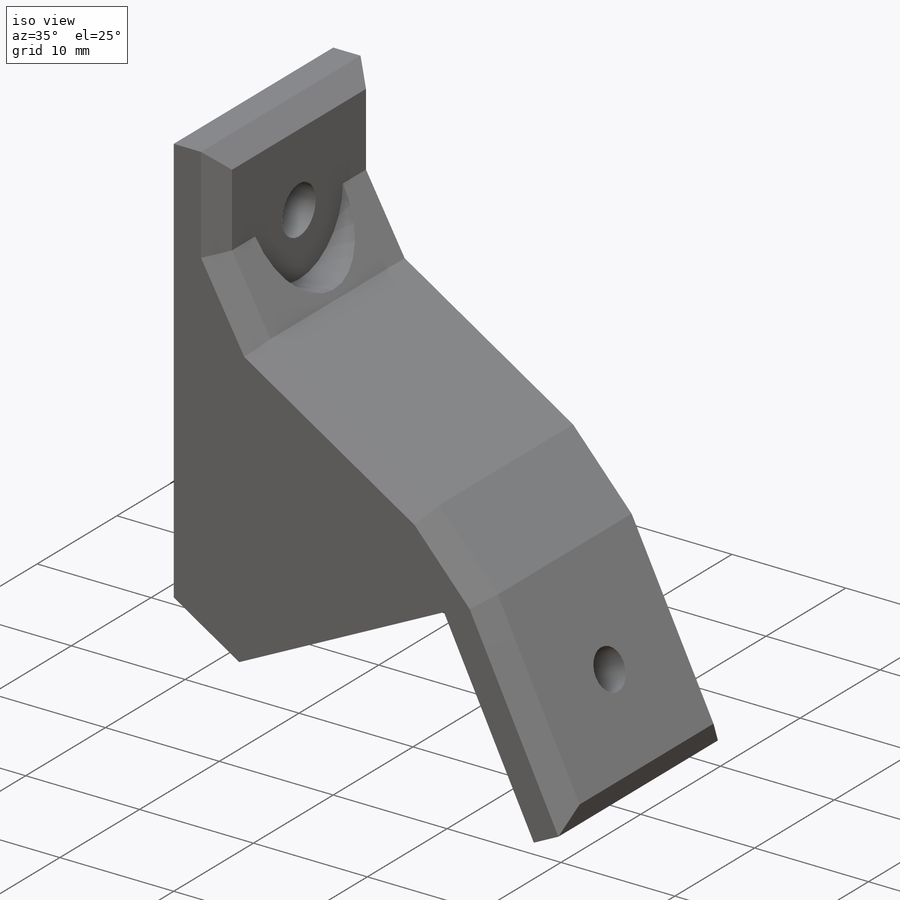
[diagram: iso view]
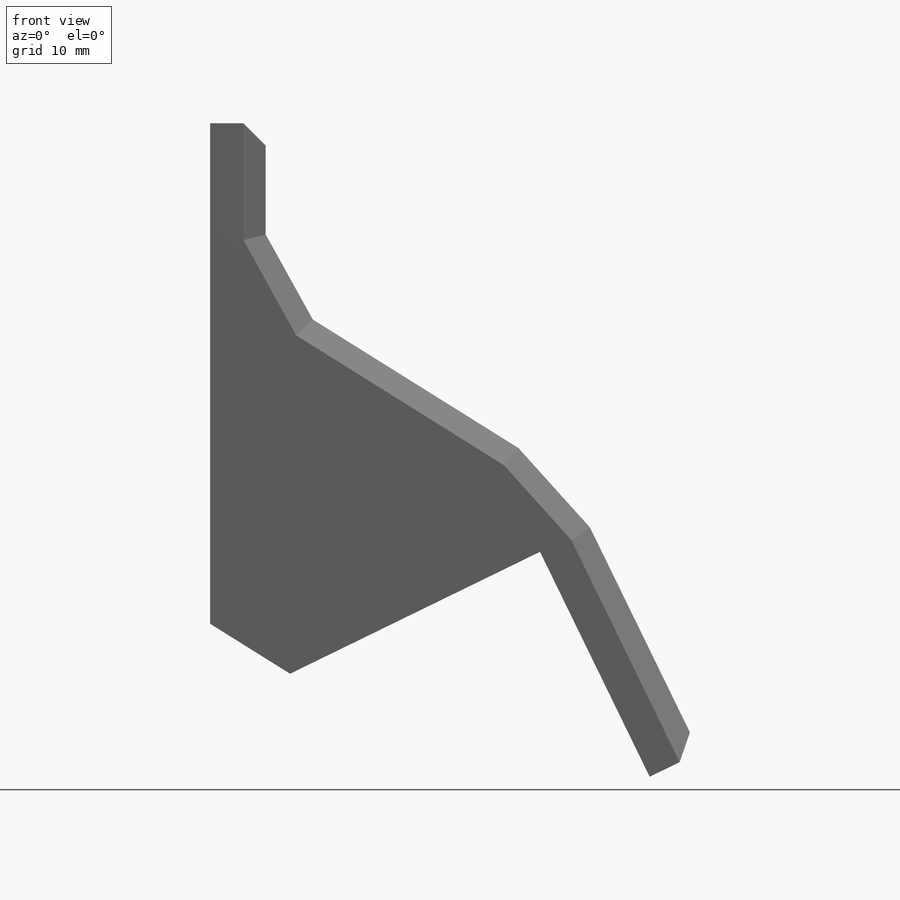
[diagram: front view]
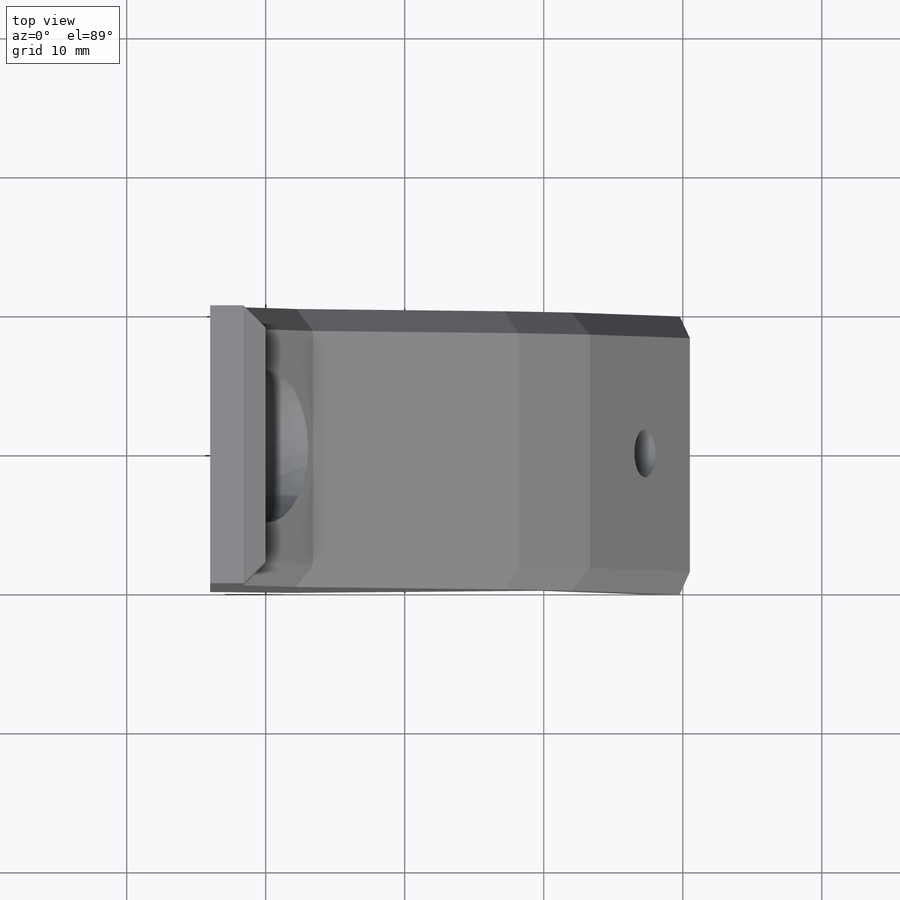
[diagram: top view]
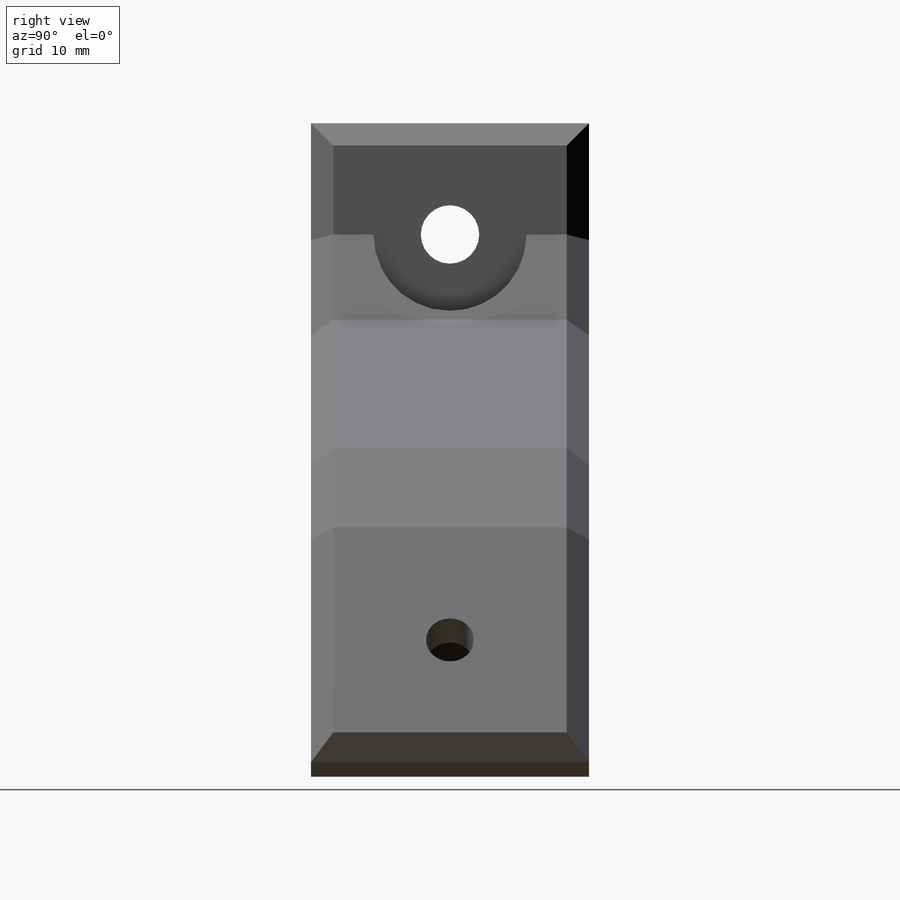
[diagram: right view]
SOLIDWORKS PART (.sldprt)
format: sldprt  version: not decoded by parser v0  size: 249,856 bytes
history: native  units: mm
features: sketch x8, extrude x4, plane x3, chamfer x2, cut_extrude x2, material x1, hole x1 (+8 scaffold rows collapsed)
feature tree (29):
  scaffold x8  (default folders/planes/origin — collapsed)
  material  "Matériau <non spécifié>"
  plane  "Plan de face"
  plane  "Plan de dessus"
  plane  "Plan de droite"
  sketch  "Esquisse1"  dims[c1.D1=20.0mm c1.D2=20.0mm c1.D3=20.0mm c2.D3=64.0deg]
  extrude  "Boss.-Extru.1"  Depth=20mm
  sketch  "Esquisse2"
  extrude  "Boss.-Extru.2"  Depth=4mm
  sketch  "Esquisse3"
  extrude  "Boss.-Extru.3"  Depth=4mm
  sketch  "Esquisse4"  dims[D1=16.0mm D2=18.0mm D3=4.0mm D4=4.0mm]
  extrude  "Boss.-Extru.4"  Depth=20mm
  chamfer  "Chanfrein1"  Distance=4mm
  sketch  "Esquisse5"  dims[D1=4.2mm D2=8.0mm D3=10.0mm]
  cut_extrude  "Enlèv. mat.-Extru.1"  [1 undecoded]
  sketch  "Esquisse6"  dims[D1=11.0mm]
  cut_extrude  "Enlèv. mat.-Extru.2"  [1 undecoded]
  hole  "Dégagement #41"  Diameter=3.4544mm Depth=10mm
  sketch  "Esquisse9"  dims[D1=9.0mm D2=10.0mm]
  sketch  "Esquisse8"  dims[hole-wizard template sketch: 46 standard entries collapsed; hole parameters kept: c15.Diamètre du perçage=3.4544mm c15.Profondeur du perçage=10.0mm c15.D3=~14.816244mm c15.Angle de pointe=118.0deg]
  chamfer  "Chanfrein2"  Distance=1.6mm Angle=45deg
decode coverage: 13 of 17 modeling features carry decoded parameters
note: ~ marks probable driven/reference dimensions
note: 2 parameter values undecoded
note: suppression state not decoded; provenance and decode notes live in map.json
